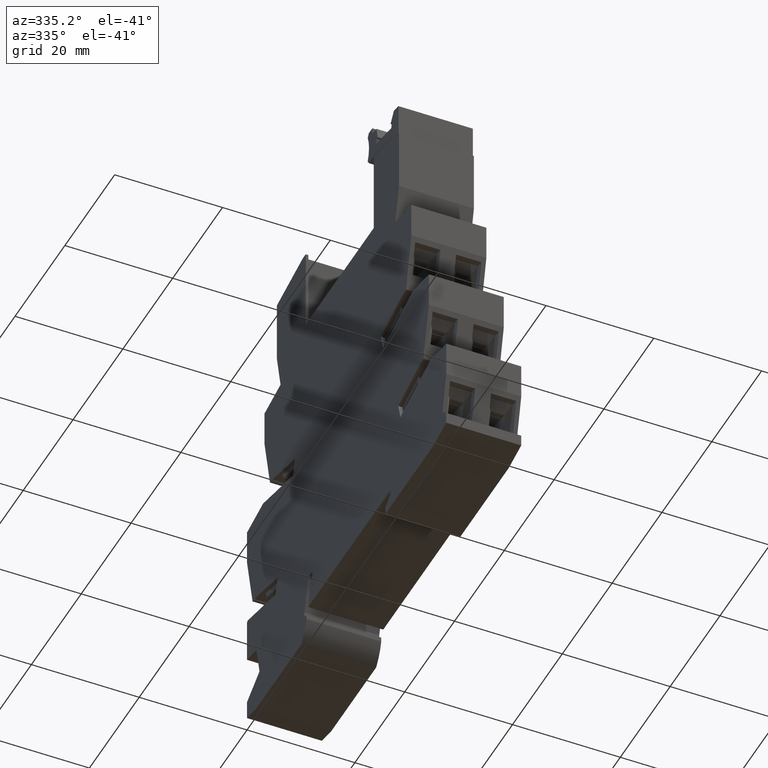
[diagram: clean part render]
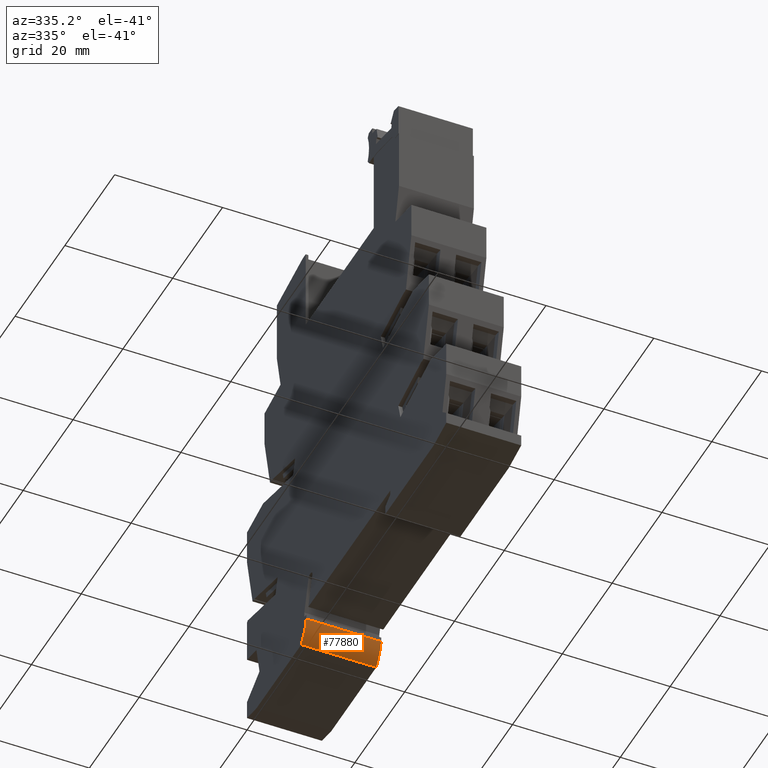
[diagram: same view with one face highlighted and labeled with its STEP entity id]
A machine part, auxiliary view. The second image highlights one B-rep face of the part: STEP entity #77880.
In plain terms, the highlighted cylindrical surface (partial cylindrical patch) has radius 9.5 mm, axis along (-1, 0, 0).
Its self-contained STEP definition (entity closure, byte-faithful):
#4930=CARTESIAN_POINT('',(-16.909983417643,-8.99999999999255,
-14.7000000000025));
#4940=VERTEX_POINT('',#4930);
#4970=CARTESIAN_POINT('',(-24.1928400000555,-2.8999999999917,
-14.7000000000029));
#4980=DIRECTION('',(-6.27941947176454E-14,4.3091449959983E-27,1.));
#4990=DIRECTION('',(-1.,6.29277372940018E-14,-6.27941947176454E-14));
#5000=AXIS2_PLACEMENT_3D('',#4970,#4980,#4990);
#5010=CIRCLE('',#5000,9.49999999999998);
#5020=CARTESIAN_POINT('',(-14.8928400000558,-4.8390719429593,
-14.7000000000023));
#5030=VERTEX_POINT('',#5020);
#5040=EDGE_CURVE('',#4940,#5030,#5010,.T.);
#9350=CARTESIAN_POINT('',(-14.8928400000567,-4.83907194295931,
-0.800000000002325));
#9360=VERTEX_POINT('',#9350);
#9390=CARTESIAN_POINT('',(-24.1928400000564,-2.8999999999917,
-0.800000000002909));
#9400=DIRECTION('',(-6.27941947176454E-14,4.3091449959983E-27,1.));
#9410=DIRECTION('',(-1.,6.29277372940018E-14,-6.27941947176454E-14));
#9420=AXIS2_PLACEMENT_3D('',#9390,#9400,#9410);
#9430=CIRCLE('',#9420,9.49999999999998);
#9440=CARTESIAN_POINT('',(-16.9099834176435,-8.99999999999211,
-0.800000000002451));
#9450=VERTEX_POINT('',#9440);
#9460=EDGE_CURVE('',#9450,#9360,#9430,.T.);
#77540=CARTESIAN_POINT('',(-14.8928400000567,-4.83907194295931,
-14.7000030000029));
#77550=DIRECTION('',(1.89326617253043E-28,3.81414247674348E-28,1.));
#77560=VECTOR('',#77550,1.);
#77570=LINE('',#77540,#77560);
#77580=EDGE_CURVE('',#5030,#9360,#77570,.T.);
#77720=CARTESIAN_POINT('',(-24.1928400000555,-2.8999999999917,
-14.7000000000049));
#77730=DIRECTION('',(-6.27941947176454E-14,4.3091449959983E-27,1.));
#77740=DIRECTION('',(-1.,6.29277372940018E-14,-6.27941947176454E-14));
#77750=AXIS2_PLACEMENT_3D('',#77720,#77730,#77740);
#77760=CYLINDRICAL_SURFACE('',#77750,9.49999999999998);
#77770=ORIENTED_EDGE('',*,*,#5040,.T.);
#77780=CARTESIAN_POINT('',(-16.9099834176426,-8.99999999999211,
-14.7000000000045));
#77790=DIRECTION('',(-6.27941947176454E-14,4.3091449959983E-27,1.));
#77800=VECTOR('',#77790,1.);
#77810=LINE('',#77780,#77800);
#77820=EDGE_CURVE('',#4940,#9450,#77810,.T.);
#77830=ORIENTED_EDGE('',*,*,#77820,.F.);
#77840=ORIENTED_EDGE('',*,*,#9460,.F.);
#77850=ORIENTED_EDGE('',*,*,#77580,.T.);
#77860=EDGE_LOOP('',(#77850,#77840,#77830,#77770));
#77870=FACE_OUTER_BOUND('',#77860,.T.);
#77880=ADVANCED_FACE('',(#77870),#77760,.T.);